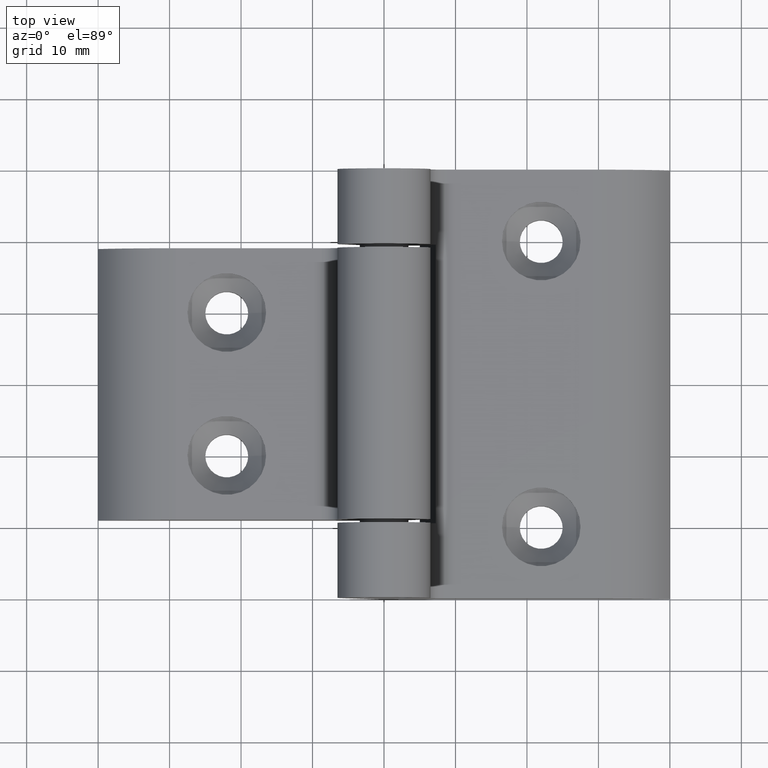
[diagram: clean part render]
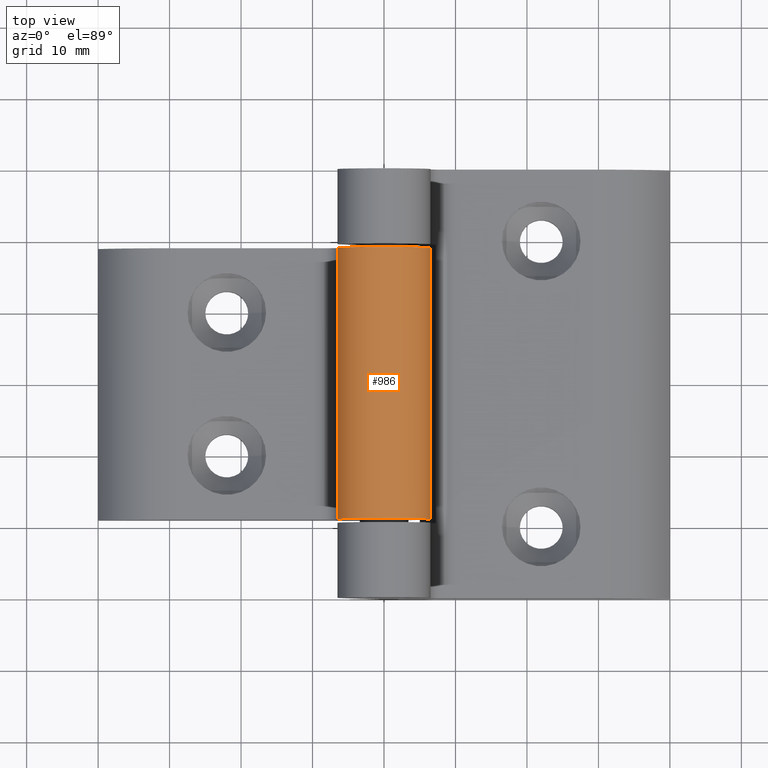
[diagram: same view with one face highlighted and labeled with its STEP entity id]
A machine part, top view. The second image highlights one B-rep face of the part: STEP entity #986.
In plain terms, the highlighted cylindrical surface (partial cylindrical patch) has radius 6.5 mm, axis along (-0, -1, -0).
Its self-contained STEP definition (entity closure, byte-faithful):
#103=CYLINDRICAL_SURFACE('',#1176,6.5);
#143=FACE_OUTER_BOUND('',#203,.T.);
#203=EDGE_LOOP('',(#883,#884,#885,#886));
#275=LINE('',#1846,#342);
#276=LINE('',#1850,#343);
#342=VECTOR('',#1441,10.);
#343=VECTOR('',#1446,10.);
#402=CIRCLE('',#1173,6.5);
#404=CIRCLE('',#1177,6.5);
#498=VERTEX_POINT('',#1832);
#499=VERTEX_POINT('',#1834);
#503=VERTEX_POINT('',#1844);
#504=VERTEX_POINT('',#1848);
#631=EDGE_CURVE('',#498,#499,#402,.T.);
#637=EDGE_CURVE('',#498,#503,#275,.T.);
#638=EDGE_CURVE('',#504,#503,#404,.T.);
#639=EDGE_CURVE('',#499,#504,#276,.T.);
#883=ORIENTED_EDGE('',*,*,#637,.T.);
#884=ORIENTED_EDGE('',*,*,#638,.F.);
#885=ORIENTED_EDGE('',*,*,#639,.F.);
#886=ORIENTED_EDGE('',*,*,#631,.F.);
#986=ADVANCED_FACE('',(#143),#103,.T.);
#1173=AXIS2_PLACEMENT_3D('',#1835,#1431,#1432);
#1176=AXIS2_PLACEMENT_3D('',#1847,#1442,#1443);
#1177=AXIS2_PLACEMENT_3D('',#1849,#1444,#1445);
#1431=DIRECTION('center_axis',(0.,-1.,0.));
#1432=DIRECTION('ref_axis',(-0.893929642887644,0.,-0.448207310925167));
#1441=DIRECTION('',(0.,1.,0.));
#1442=DIRECTION('center_axis',(0.,1.,0.));
#1443=DIRECTION('ref_axis',(-0.12004272317629,0.,0.992768726649072));
#1444=DIRECTION('center_axis',(0.,1.,0.));
#1445=DIRECTION('ref_axis',(-0.893929642887644,0.,-0.448207310925167));
#1446=DIRECTION('',(0.,1.,0.));
#1832=CARTESIAN_POINT('',(6.3374742797832,-19.,-1.44444444444445));
#1834=CARTESIAN_POINT('',(-5.81054267876969,-19.,-2.91334752101359));
#1835=CARTESIAN_POINT('Origin',(0.,-19.,-1.38777878078145E-15));
#1844=CARTESIAN_POINT('',(6.3374742797832,19.,-1.44444444444445));
#1846=CARTESIAN_POINT('',(6.3374742797832,0.,-1.44444444444445));
#1847=CARTESIAN_POINT('Origin',(0.,0.,-1.38777878078145E-15));
#1848=CARTESIAN_POINT('',(-5.81054267876969,19.,-2.91334752101359));
#1849=CARTESIAN_POINT('Origin',(0.,19.,-1.38777878078145E-15));
#1850=CARTESIAN_POINT('',(-5.81054267876969,0.,-2.91334752101359));